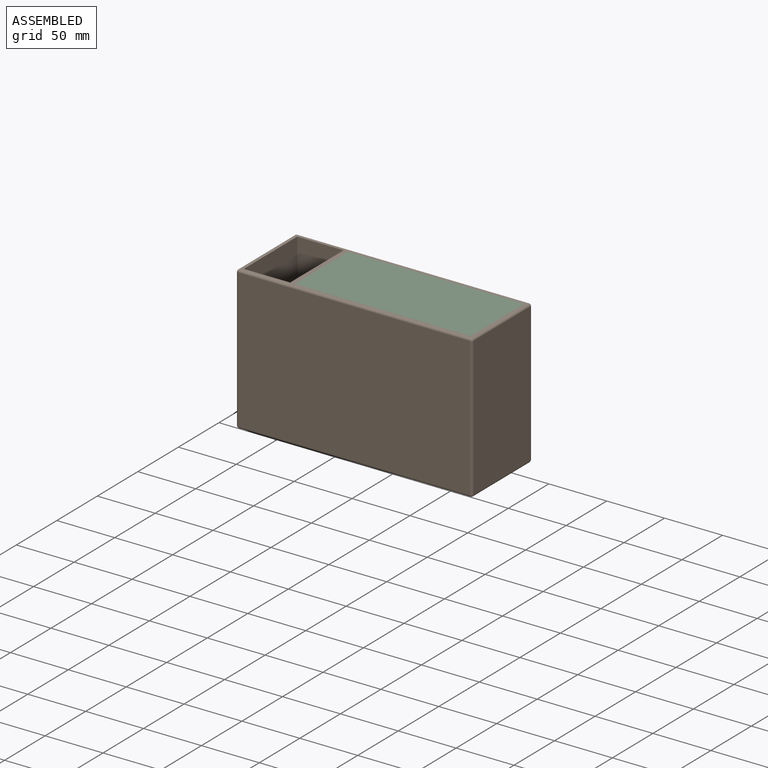
[diagram: assembled view]
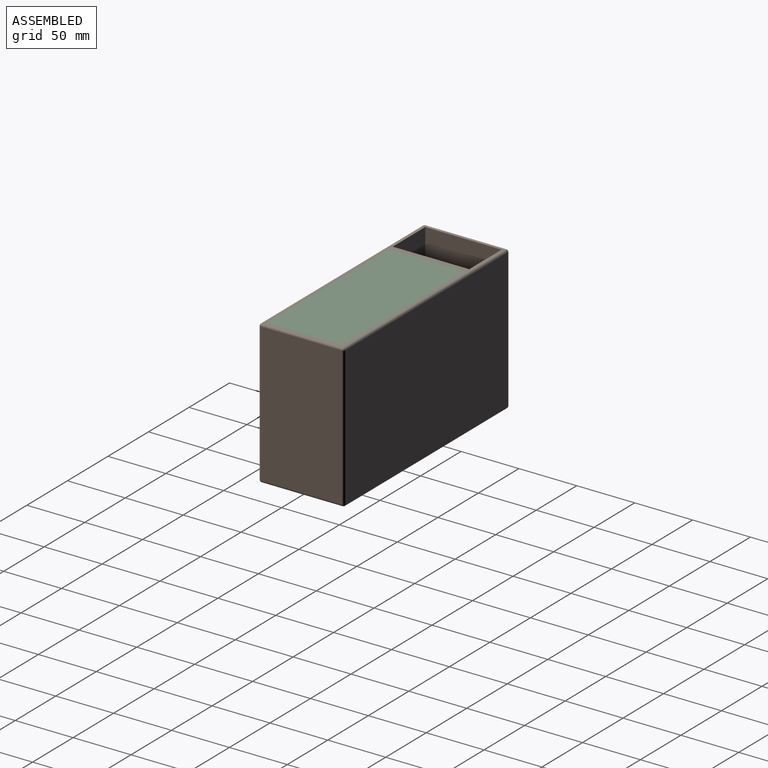
[diagram: assembled view, second angle]
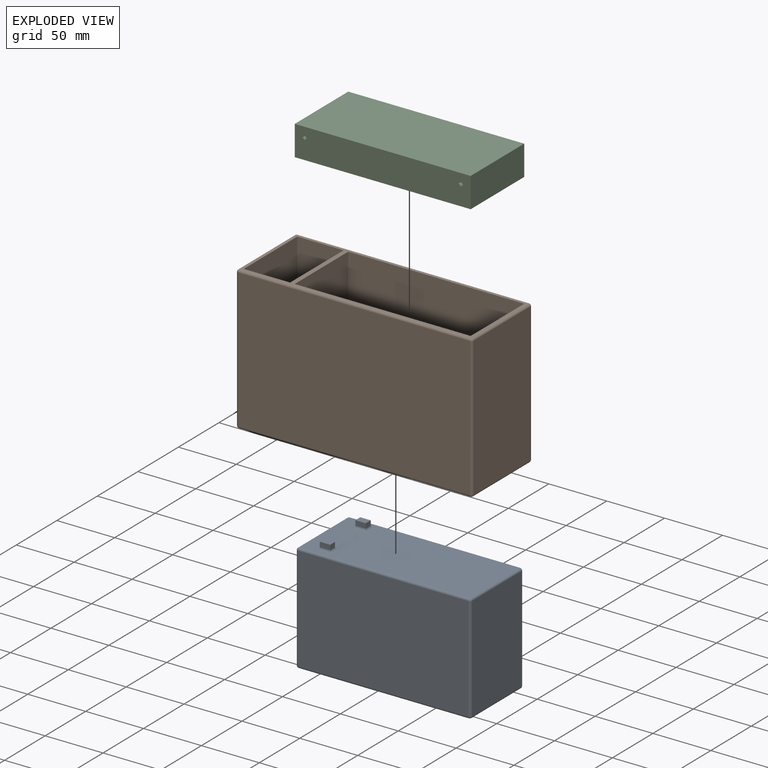
[diagram: exploded view]
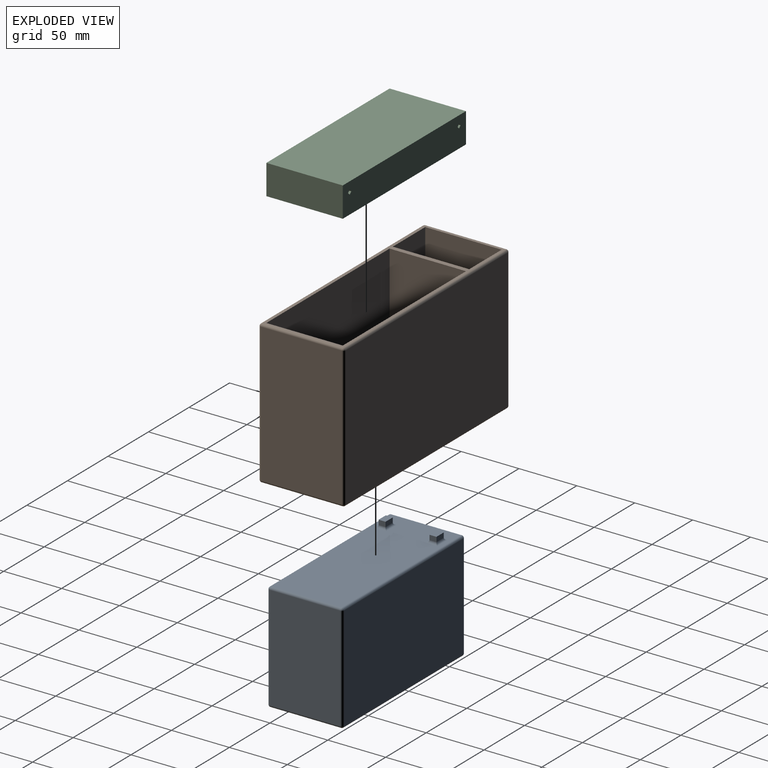
[diagram: exploded view, second angle]
ASSEMBLY  parts=3 mates=2
PART A: 44 faces, bbox 151x65x100 mm
  f0: plane 147x61mm, normal (0,0,1), area 8707mm2, adj f16,f17,f18,f19,f20,f21,f22,f23
  f1: plane 147x90mm, normal (0,1,0), area 13230mm2, adj f32,f37,f40,f43
  f2: plane 90x61mm, normal (-1,0,0), area 5490mm2, adj f29,f38,f39,f43
  f3: plane 147x90mm, normal (0,-1,0), area 13230mm2, adj f24,f28,f29,f30
  f4: plane 90x61mm, normal (1,0,0), area 5490mm2, adj f24,f27,f31,f32
  f5: plane 147x61mm, normal (0,0,-1), area 8967mm2, adj f30,f31,f39,f40
  f6: plane 9x4mm, normal (0,1,0), area 36mm2, adj f7,f9,f10,f21
  f7: plane 6x4mm, normal (-1,0,0), area 24mm2, adj f6,f8,f10,f23
  f8: plane 9x4mm, normal (0,-1,0), area 36mm2, adj f7,f9,f10,f22
  f9: plane 6x4mm, normal (1,0,0), area 24mm2, adj f6,f8,f10,f20
  f10: plane 9x6mm, normal (0,0,1), area 54mm2, adj f6,f7,f8,f9
  f11: plane 9x4mm, normal (0,1,0), area 36mm2, adj f12,f14,f15,f16
  f12: plane 6x4mm, normal (-1,0,0), area 24mm2, adj f11,f13,f15,f17
  f13: plane 9x4mm, normal (0,-1,0), area 36mm2, adj f12,f14,f15,f19
  f14: plane 6x4mm, normal (1,0,0), area 24mm2, adj f11,f13,f15,f18
  f15: plane 9x6mm, normal (0,0,1), area 54mm2, adj f11,f12,f13,f14
  f16: cylinder r=2mm len=13mm, axis (-1,0,0), area 32.8mm2, adj f0,f11,f17,f18
  f17: cylinder r=2mm len=10mm, axis (0,-1,0), area 23.4mm2, adj f0,f12,f16,f19
  f18: cylinder r=2mm len=10mm, axis (0,1,0), area 23.4mm2, adj f0,f14,f16,f19
  f19: cylinder r=2mm len=13mm, axis (1,0,0), area 32.8mm2, adj f0,f13,f17,f18
  f20: cylinder r=2mm len=10mm, axis (0,1,0), area 23.4mm2, adj f0,f9,f21,f22
  f21: cylinder r=2mm len=13mm, axis (-1,0,0), area 32.8mm2, adj f0,f6,f20,f23
  f22: cylinder r=2mm len=13mm, axis (1,0,0), area 32.8mm2, adj f0,f8,f20,f23
  f23: cylinder r=2mm len=10mm, axis (0,-1,0), area 23.4mm2, adj f0,f7,f21,f22
  f24: cylinder r=2mm len=90mm, axis (0,0,1), area 282.7mm2, adj f3,f4,f25,f26
  f25: sphere r=2mm, area 6.3mm2, adj f24,f27,f28
  f26: sphere r=2mm, area 6.3mm2, adj f24,f30,f31
  f27: cylinder r=2mm len=61mm, axis (0,-1,0), area 191.6mm2, adj f0,f4,f25,f33
  f28: cylinder r=2mm len=147mm, axis (-1,0,0), area 461.8mm2, adj f0,f3,f25,f34
  f29: cylinder r=2mm len=90mm, axis (0,0,-1), area 282.7mm2, adj f2,f3,f34,f35
  f30: cylinder r=2mm len=147mm, axis (1,0,0), area 461.8mm2, adj f3,f5,f26,f35
  f31: cylinder r=2mm len=61mm, axis (0,1,0), area 191.6mm2, adj f4,f5,f26,f36
  f32: cylinder r=2mm len=90mm, axis (0,0,-1), area 282.7mm2, adj f1,f4,f33,f36
  f33: sphere r=2mm, area 6.3mm2, adj f27,f32,f37
  f34: sphere r=2mm, area 6.3mm2, adj f28,f29,f38
  f35: sphere r=2mm, area 6.3mm2, adj f29,f30,f39
  f36: sphere r=2mm, area 6.3mm2, adj f31,f32,f40
  f37: cylinder r=2mm len=147mm, axis (1,0,0), area 461.8mm2, adj f0,f1,f33,f41
  f38: cylinder r=2mm len=61mm, axis (0,1,0), area 191.6mm2, adj f0,f2,f34,f41
  f39: cylinder r=2mm len=61mm, axis (0,-1,0), area 191.6mm2, adj f2,f5,f35,f42
  f40: cylinder r=2mm len=147mm, axis (-1,0,0), area 461.8mm2, adj f1,f5,f36,f42
  f41: sphere r=2mm, area 6.3mm2, adj f37,f38,f43
  f42: sphere r=2mm, area 6.3mm2, adj f39,f40,f43
  f43: cylinder r=2mm len=90mm, axis (0,0,1), area 282.7mm2, adj f1,f2,f41,f42
PART B: 36 faces, bbox 204x74x124 mm
  f0: plane 120x70mm, normal (-1,0,0), area 8400mm2, adj f19,f20,f29,f30
  f1: plane 200x120mm, normal (0,-1,0), area 24000mm2, adj f24,f29,f32,f35
  f2: plane 120x70mm, normal (1,0,0), area 8400mm2, adj f22,f23,f31,f32
  f3: plane 200x120mm, normal (0,1,0), area 24000mm2, adj f16,f20,f21,f22
  f4: plane 200x70mm, normal (0,0,-1), area 14000mm2, adj f16,f19,f23,f24
  f5: plane 120x66mm, normal (1,0,0), area 7920mm2, adj f6,f12,f13,f14
  f6: plane 152x120mm, normal (0,-1,0), area 18240mm2, adj f5,f7,f13,f14
  f7: plane 120x66mm, normal (-1,0,0), area 7920mm2, adj f6,f12,f13,f14
  f8: plane 120x40mm, normal (0,-1,0), area 4800mm2, adj f9,f11,f13,f15
  f9: plane 120x66mm, normal (-1,0,0), area 7920mm2, adj f8,f10,f13,f15
  f10: plane 120x40mm, normal (0,1,0), area 4800mm2, adj f9,f11,f13,f15
  f11: plane 120x66mm, normal (1,0,0), area 7920mm2, adj f8,f10,f13,f15
  f12: plane 152x120mm, normal (0,1,0), area 18240mm2, adj f5,f7,f13,f14
  f13: plane 200x70mm, normal (0,0,1), area 1328mm2, adj f5,f6,f7,f8,f9,f10,f11,f12
  f14: plane 152x66mm, normal (0,0,1), area 10032mm2, adj f5,f6,f7,f12
  f15: plane 66x40mm, normal (0,0,1), area 2640mm2, adj f8,f9,f10,f11
  f16: cylinder r=2mm len=200mm, axis (1,0,0), area 628.3mm2, adj f3,f4,f17,f18
  f17: sphere r=2mm, area 6.3mm2, adj f16,f19,f20
  f18: sphere r=2mm, area 6.3mm2, adj f16,f22,f23
  f19: cylinder r=2mm len=70mm, axis (0,1,0), area 219.9mm2, adj f0,f4,f17,f25
  f20: cylinder r=2mm len=120mm, axis (0,0,-1), area 377mm2, adj f0,f3,f17,f26
  f21: cylinder r=2mm len=200mm, axis (-1,0,0), area 628.3mm2, adj f3,f13,f26,f27
  f22: cylinder r=2mm len=120mm, axis (0,0,1), area 377mm2, adj f2,f3,f18,f27
  f23: cylinder r=2mm len=70mm, axis (0,-1,0), area 219.9mm2, adj f2,f4,f18,f28
  f24: cylinder r=2mm len=200mm, axis (-1,0,0), area 628.3mm2, adj f1,f4,f25,f28
  f25: sphere r=2mm, area 6.3mm2, adj f19,f24,f29
  f26: sphere r=2mm, area 6.3mm2, adj f20,f21,f30
  f27: sphere r=2mm, area 6.3mm2, adj f21,f22,f31
  f28: sphere r=2mm, area 6.3mm2, adj f23,f24,f32
  f29: cylinder r=2mm len=120mm, axis (0,0,1), area 377mm2, adj f0,f1,f25,f33
  f30: cylinder r=2mm len=70mm, axis (0,-1,0), area 219.9mm2, adj f0,f13,f26,f33
  f31: cylinder r=2mm len=70mm, axis (0,1,0), area 219.9mm2, adj f2,f13,f27,f34
  f32: cylinder r=2mm len=120mm, axis (0,0,-1), area 377mm2, adj f1,f2,f28,f34
  f33: sphere r=2mm, area 6.3mm2, adj f29,f30,f35
  f34: sphere r=2mm, area 6.3mm2, adj f31,f32,f35
  f35: cylinder r=2mm len=200mm, axis (1,0,0), area 628.3mm2, adj f1,f13,f33,f34
PART C: 23 faces, bbox 152x66x26 mm
  f0: plane 58x13mm, normal (1,0,0), area 754mm2, adj f8,f9,f10,f13
  f1: plane 58x13mm, normal (-1,0,0), area 754mm2, adj f8,f9,f10,f12
  f2: plane 126x58mm, normal (0,0,-1), area 7308mm2, adj f8,f9,f11,f14
  f3: plane 66x26mm, normal (1,0,0), area 1716mm2, adj f4,f6,f7,f10
  f4: plane 152x26mm, normal (0,1,0), area 3937.5mm2, adj f3,f5,f7,f10,f15,f16,f17,f18
  f5: plane 66x26mm, normal (-1,0,0), area 1716mm2, adj f4,f6,f7,f10
  f6: plane 152x26mm, normal (0,-1,0), area 3937.5mm2, adj f3,f5,f7,f10,f15,f16,f17,f18
  f7: plane 152x66mm, normal (0,0,1), area 10032mm2, adj f3,f4,f5,f6
  f8: plane 144x22mm, normal (0,-1,0), area 3006mm2, adj f0,f1,f2,f10,f11,f12,f13,f14
  f9: plane 144x22mm, normal (0,1,0), area 3006mm2, adj f0,f1,f2,f10,f11,f12,f13,f14
  f10: plane 152x66mm, normal (0,0,-1), area 1680mm2, adj f0,f1,f3,f4,f5,f6,f8,f9
  f11: plane 58x9mm, normal (-1,0,0), area 522mm2, adj f2,f8,f9,f12
  f12: plane 58x9mm, normal (0,0,-1), area 522mm2, adj f1,f8,f9,f11
  f13: plane 58x9mm, normal (0,0,-1), area 522mm2, adj f0,f8,f9,f14
  f14: plane 58x9mm, normal (1,0,0), area 522mm2, adj f2,f8,f9,f13
  f15: plane 66x2mm, normal (-0.71,0,-0.71), area 186.7mm2, adj f4,f6,f16,f18
  f16: plane 66x2mm, normal (-0.71,0,0.71), area 186.7mm2, adj f4,f6,f15,f17
  f17: plane 66x2mm, normal (0.71,0,0.71), area 186.7mm2, adj f4,f6,f16,f18
  f18: plane 66x2mm, normal (0.71,0,-0.71), area 186.7mm2, adj f4,f6,f15,f17
  f19: plane 66x1.8mm, normal (-0.71,0,-0.71), area 168mm2, adj f4,f6,f20,f22
  f20: plane 66x1.8mm, normal (-0.71,0,0.71), area 168mm2, adj f4,f6,f19,f21
  f21: plane 66x1.8mm, normal (0.71,0,0.71), area 168mm2, adj f4,f6,f20,f22
  f22: plane 66x1.8mm, normal (0.71,0,-0.71), area 168mm2, adj f4,f6,f19,f21
PLACE A rot(axis=(0,0,1),180deg) t=(10.4,20.44,-17.29)mm
PLACE B t=(10.4,20.44,-17.29)mm
PLACE C t=(10.4,20.44,-51.29)mm
MATE fastened C.f10 <-> A.f0  axis (0,0,-1) through (10.4,20.44,76.71)mm
MATE fastened A.f5 <-> B.f14  axis (0,0,1) through (10.4,20.44,-17.29)mm
